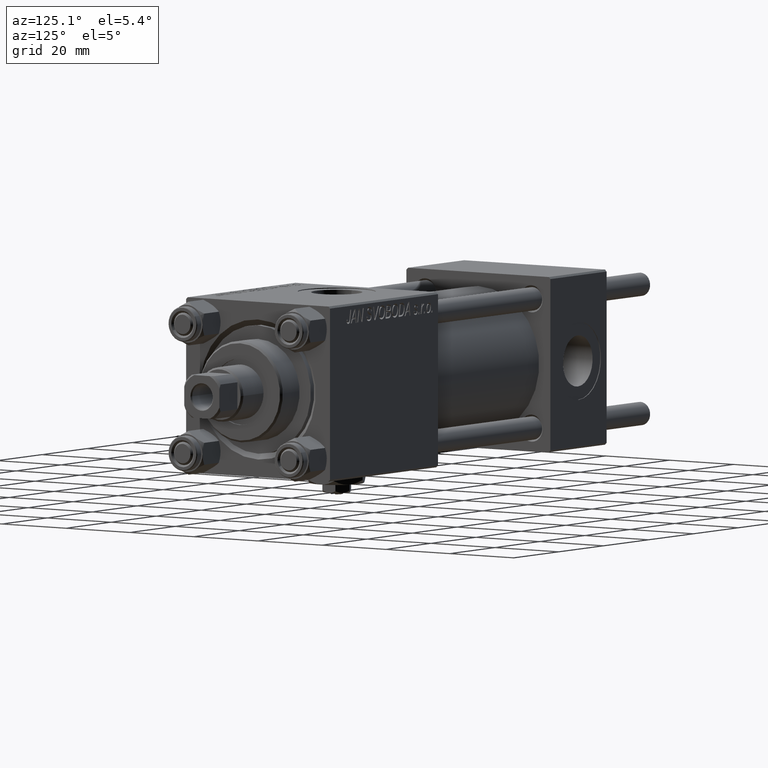
[diagram: clean part render]
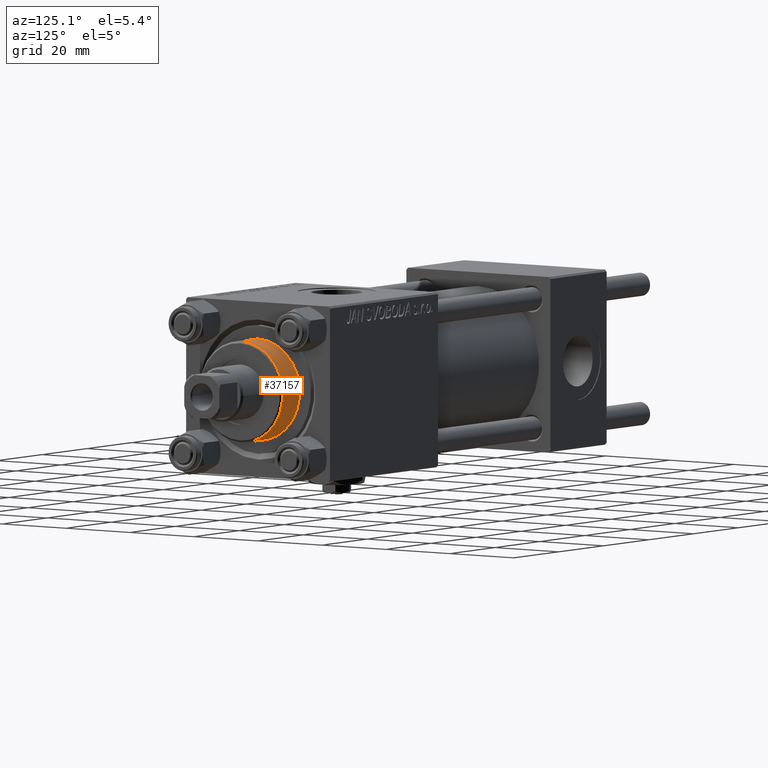
[diagram: same view with one face highlighted and labeled with its STEP entity id]
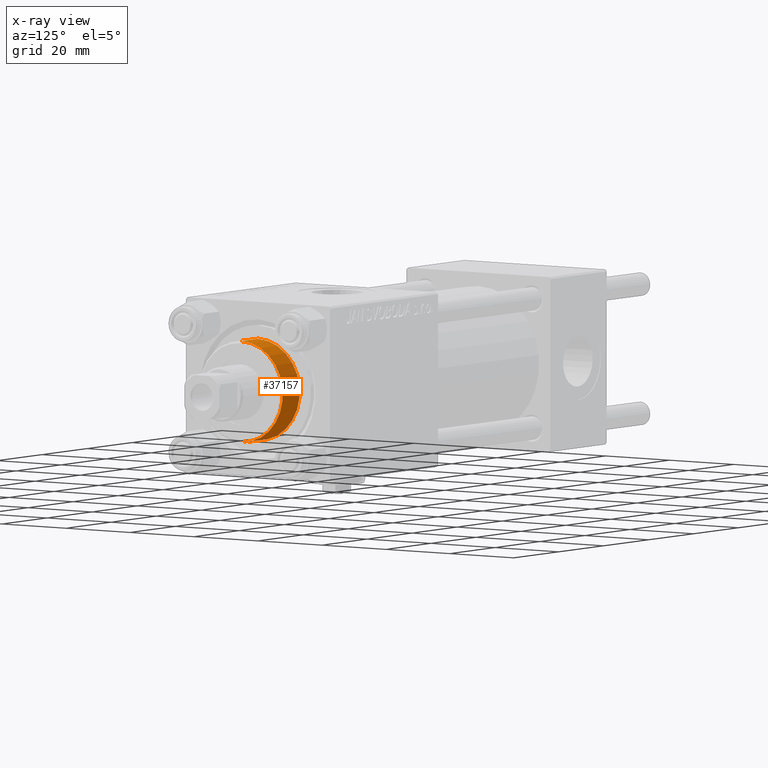
[diagram: x-ray of the same camera — body ghosted, the highlighted face saturated]
A machine part, auxiliary view. The second image highlights one B-rep face of the part: STEP entity #37157.
The next image is the same camera in x-ray: the body ghosted, the highlighted face saturated — about 0% of this face is hidden behind the body in this view.
In plain terms, the highlighted cylindrical surface (partial cylindrical patch) has radius 13 mm, axis along (-1, -0, 0).
Its self-contained STEP definition (entity closure, byte-faithful):
#334 = FACE_OUTER_BOUND ( 'NONE', #37134, .T. ) ;
#1115 = EDGE_CURVE ( 'NONE', #18111, #12226, #13511, .T. ) ;
#3508 = DIRECTION ( 'NONE',  ( -1.000000000000000000, 0.000000000000000000, 0.000000000000000000 ) ) ;
#4451 = EDGE_CURVE ( 'NONE', #12226, #43163, #32585, .T. ) ;
#4853 = VECTOR ( 'NONE', #42294, 1000.000000000000000 ) ;
#6976 = ORIENTED_EDGE ( 'NONE', *, *, #48558, .T. ) ;
#7687 = DIRECTION ( 'NONE',  ( -0.000000000000000000, -0.000000000000000000, -1.000000000000000000 ) ) ;
#7945 = CARTESIAN_POINT ( 'NONE',  ( 0.000000000000000000, 0.000000000000000000, 36.69999999999999574 ) ) ;
#10325 = LINE ( 'NONE', #14013, #4853 ) ;
#12226 = VERTEX_POINT ( 'NONE', #21200 ) ;
#13511 = CIRCLE ( 'NONE', #38654, 13.00000000000000178 ) ;
#14013 = CARTESIAN_POINT ( 'NONE',  ( -13.00000000000000178, 0.000000000000000000, 36.69999999999999574 ) ) ;
#14837 = CIRCLE ( 'NONE', #34120, 13.00000000000000178 ) ;
#18111 = VERTEX_POINT ( 'NONE', #31415 ) ;
#21200 = CARTESIAN_POINT ( 'NONE',  ( 13.00000000000000178, 1.592040838891559293E-15, 36.20000000000000995 ) ) ;
#21288 = VERTEX_POINT ( 'NONE', #25526 ) ;
#21503 = CARTESIAN_POINT ( 'NONE',  ( 0.000000000000000000, 0.000000000000000000, 36.20000000000000995 ) ) ;
#22220 = ORIENTED_EDGE ( 'NONE', *, *, #4451, .T. ) ;
#25526 = CARTESIAN_POINT ( 'NONE',  ( -13.00000000000000178, 0.000000000000000000, 28.69999999999999929 ) ) ;
#27236 = ORIENTED_EDGE ( 'NONE', *, *, #1115, .T. ) ;
#29334 = DIRECTION ( 'NONE',  ( 0.000000000000000000, 0.000000000000000000, 1.000000000000000000 ) ) ;
#29540 = ORIENTED_EDGE ( 'NONE', *, *, #49963, .F. ) ;
#31415 = CARTESIAN_POINT ( 'NONE',  ( -13.00000000000000178, 0.000000000000000000, 36.20000000000000995 ) ) ;
#32312 = CYLINDRICAL_SURFACE ( 'NONE', #38135, 13.00000000000000178 ) ;
#32585 = LINE ( 'NONE', #40708, #47909 ) ;
#33293 = DIRECTION ( 'NONE',  ( 0.000000000000000000, 0.000000000000000000, -1.000000000000000000 ) ) ;
#34120 = AXIS2_PLACEMENT_3D ( 'NONE', #45052, #29334, #44530 ) ;
#37134 = EDGE_LOOP ( 'NONE', ( #27236, #22220, #6976, #29540 ) ) ;
#37157 = ADVANCED_FACE ( 'NONE', ( #334 ), #32312, .T. ) ;
#38135 = AXIS2_PLACEMENT_3D ( 'NONE', #7945, #7687, #3508 ) ;
#38654 = AXIS2_PLACEMENT_3D ( 'NONE', #21503, #33293, #45080 ) ;
#40708 = CARTESIAN_POINT ( 'NONE',  ( 13.00000000000000178, 1.592040838891559293E-15, 36.69999999999999574 ) ) ;
#42294 = DIRECTION ( 'NONE',  ( -0.000000000000000000, -0.000000000000000000, -1.000000000000000000 ) ) ;
#43163 = VERTEX_POINT ( 'NONE', #43710 ) ;
#43710 = CARTESIAN_POINT ( 'NONE',  ( 13.00000000000000178, 1.592040838891559293E-15, 28.69999999999999929 ) ) ;
#44119 = DIRECTION ( 'NONE',  ( -0.000000000000000000, -0.000000000000000000, -1.000000000000000000 ) ) ;
#44530 = DIRECTION ( 'NONE',  ( 1.000000000000000000, 0.000000000000000000, 0.000000000000000000 ) ) ;
#45052 = CARTESIAN_POINT ( 'NONE',  ( 0.000000000000000000, 0.000000000000000000, 28.69999999999999929 ) ) ;
#45080 = DIRECTION ( 'NONE',  ( 1.000000000000000000, 0.000000000000000000, 0.000000000000000000 ) ) ;
#47909 = VECTOR ( 'NONE', #44119, 1000.000000000000000 ) ;
#48558 = EDGE_CURVE ( 'NONE', #43163, #21288, #14837, .T. ) ;
#49963 = EDGE_CURVE ( 'NONE', #18111, #21288, #10325, .T. ) ;